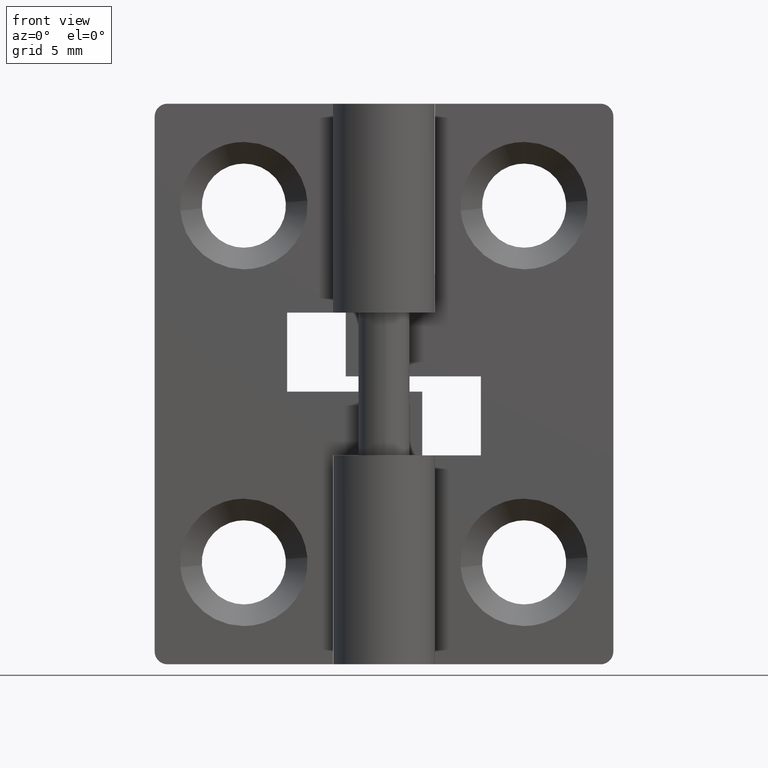
[diagram: clean part render]
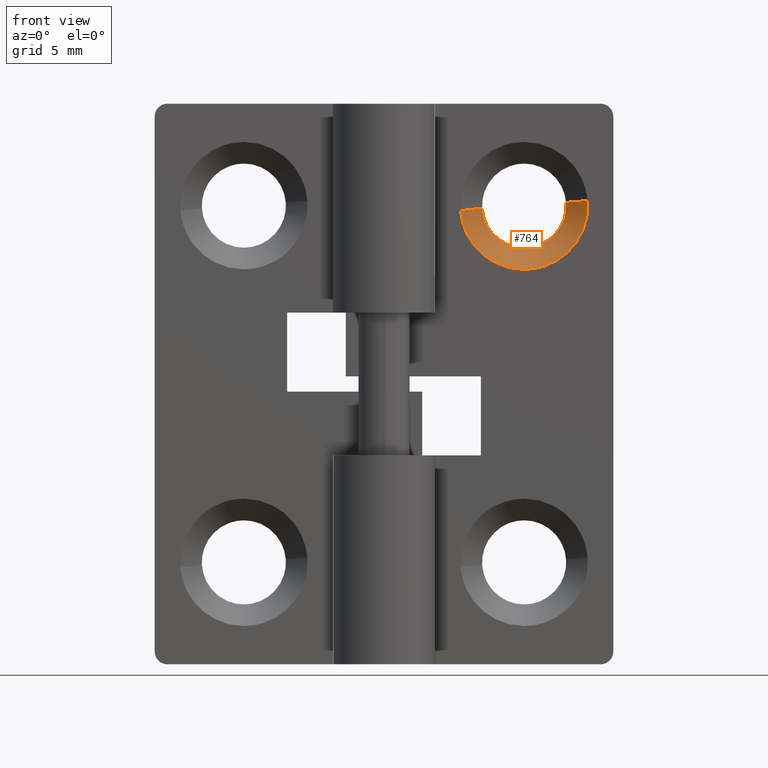
[diagram: same view with one face highlighted and labeled with its STEP entity id]
A machine part, front view. The second image highlights one B-rep face of the part: STEP entity #764.
In plain terms, the highlighted face is a freeform B-spline surface patch.
Its self-contained STEP definition (entity closure, byte-faithful):
#455=CARTESIAN_POINT('',(7.139224169167774,1.850000000000000,17.811733903168349));
#456=VERTEX_POINT('',#455);
#457=CARTESIAN_POINT('',(5.500000000000000,1.850000000000000,16.350000000000001));
#458=VERTEX_POINT('',#457);
#459=CARTESIAN_POINT('',(7.139224169167774,1.850000000000000,17.811733903168353));
#460=CARTESIAN_POINT('',(6.971342959418049,1.850000000000001,16.349999999999998));
#461=CARTESIAN_POINT('',(5.500000000000000,1.850000000000000,16.350000000000001));
#469=(BOUNDED_CURVE()B_SPLINE_CURVE(2,(#459,#460,#461),.UNSPECIFIED.,.F.,.U.)B_SPLINE_CURVE_WITH_KNOTS((3,3),(0.269767755878685,0.500000000000000),.UNSPECIFIED.)CURVE()GEOMETRIC_REPRESENTATION_ITEM()RATIONAL_B_SPLINE_CURVE((0.957343736456570,0.730266147778653,1.0))REPRESENTATION_ITEM(''));
#470=EDGE_CURVE('',#456,#458,#469,.T.);
#509=CARTESIAN_POINT('',(3.853077582606727,1.850000000000000,17.899269909721589));
#510=VERTEX_POINT('',#509);
#516=CARTESIAN_POINT('',(5.500000000000000,1.850000000000000,16.350000000000001));
#517=CARTESIAN_POINT('',(3.947834989648941,1.850000000000000,16.350000000000001));
#518=CARTESIAN_POINT('',(3.853077582606727,1.850000000000000,17.899269909721578));
#526=(BOUNDED_CURVE()B_SPLINE_CURVE(2,(#516,#517,#518),.UNSPECIFIED.,.F.,.U.)B_SPLINE_CURVE_WITH_KNOTS((3,3),(0.500000000000000,0.739332962237160),.UNSPECIFIED.)CURVE()GEOMETRIC_REPRESENTATION_ITEM()RATIONAL_B_SPLINE_CURVE((1.0,0.719603993288799,0.976072041662896))REPRESENTATION_ITEM(''));
#527=EDGE_CURVE('',#458,#510,#526,.T.);
#554=CARTESIAN_POINT('',(7.144913600666376,1.849999999983172,18.129457508080140));
#555=VERTEX_POINT('',#554);
#556=CARTESIAN_POINT('',(7.144913600666376,1.849999999983172,18.129457508080137));
#557=CARTESIAN_POINT('',(7.150000000000001,1.850000000000000,18.064828676691121));
#558=CARTESIAN_POINT('',(7.150000000000000,1.850000000000000,18.0));
#559=CARTESIAN_POINT('',(7.150000000000001,1.850000000000000,17.905558562198120));
#560=CARTESIAN_POINT('',(7.139224169167774,1.850000000000000,17.811733903168353));
#568=(BOUNDED_CURVE()B_SPLINE_CURVE(2,(#556,#557,#558,#559,#560),.UNSPECIFIED.,.F.,.U.)B_SPLINE_CURVE_WITH_KNOTS((3,2,3),(0.236331300606114,0.250000000000000,0.269767755878685),.UNSPECIFIED.)CURVE()GEOMETRIC_REPRESENTATION_ITEM()RATIONAL_B_SPLINE_CURVE((0.969723356116193,0.983986122550125,1.0,0.976840633407894,0.957343736456570))REPRESENTATION_ITEM(''));
#569=EDGE_CURVE('',#555,#456,#568,.T.);
#657=CARTESIAN_POINT('',(7.992293334333542,0.999999999998199,18.196147739333380));
#658=VERTEX_POINT('',#657);
#659=CARTESIAN_POINT('',(7.144913600666376,1.849999999983172,18.129457508080140));
#660=CARTESIAN_POINT('',(7.992293334333542,0.999999999998199,18.196147739333380));
#661=QUASI_UNIFORM_CURVE('',1,(#659,#660),.UNSPECIFIED.,.F.,.U.);
#662=EDGE_CURVE('',#555,#658,#661,.T.);
#679=CARTESIAN_POINT('',(3.007706665666458,0.999999999998199,17.803852260666620));
#680=VERTEX_POINT('',#679);
#696=CARTESIAN_POINT('',(3.853077582606727,1.850000000000000,17.899269909721589));
#697=CARTESIAN_POINT('',(3.007706665666458,0.999999999998199,17.803852260666620));
#698=QUASI_UNIFORM_CURVE('',1,(#696,#697),.UNSPECIFIED.,.F.,.U.);
#699=EDGE_CURVE('',#510,#680,#698,.T.);
#705=CARTESIAN_POINT('',(3.872274542714835,1.871250000000001,17.922988188715543));
#706=CARTESIAN_POINT('',(3.874259691562528,1.871249999999999,17.897764481024947));
#707=CARTESIAN_POINT('',(4.004061144848891,1.871250000000000,16.248480640515432));
#708=CARTESIAN_POINT('',(5.627790252166729,1.871250000000000,16.376270892682161));
#709=CARTESIAN_POINT('',(7.251519359484565,1.871250000000000,16.504061144848897));
#710=CARTESIAN_POINT('',(7.122822589265389,1.871250000000000,18.139308656138169));
#711=CARTESIAN_POINT('',(7.121921382934004,1.871250000000000,18.150759568294252));
#712=CARTESIAN_POINT('',(2.979805041701067,0.978218750000000,17.880763197712550));
#713=CARTESIAN_POINT('',(2.982878632579084,0.978218749999999,17.841709522741191));
#714=CARTESIAN_POINT('',(3.183849236490243,0.978218750000000,15.288135883493366));
#715=CARTESIAN_POINT('',(5.697856676498436,0.978218750000000,15.485992559991811));
#716=CARTESIAN_POINT('',(8.211864116506629,0.978218750000000,15.683849236490246));
#717=CARTESIAN_POINT('',(8.012603884995176,0.978218750000000,18.215690533852296));
#718=CARTESIAN_POINT('',(8.011208554079524,0.978218749999999,18.233419894141246));
#726=(BOUNDED_SURFACE()B_SPLINE_SURFACE(2,1,((#705,#712),(#706,#713),(#707,#714),(#708,#715),(#709,#716),(#710,#717),(#711,#718)),.UNSPECIFIED.,.F.,.F.,.U.)B_SPLINE_SURFACE_WITH_KNOTS((3,1,2,1,3),(2,2),(0.0,0.093606268210475,4.271830248563184,8.450054228915892,8.492094299002343),(0.0,1.0),.UNSPECIFIED.)GEOMETRIC_REPRESENTATION_ITEM()RATIONAL_B_SPLINE_SURFACE(((1.013123586158235,1.013123586158235),(1.006561793079118,1.006561793079118),(0.707106781186548,0.707106781186548),(1.0,1.0),(0.707106781186548,0.707106781186548),(1.002947006073553,1.002947006073553),(1.005894012147106,1.005894012147106)))REPRESENTATION_ITEM('')SURFACE());
#727=ORIENTED_EDGE('',*,*,#569,.T.);
#728=ORIENTED_EDGE('',*,*,#470,.T.);
#729=ORIENTED_EDGE('',*,*,#527,.T.);
#730=ORIENTED_EDGE('',*,*,#699,.T.);
#731=CARTESIAN_POINT('',(5.500000000000000,1.0,15.500000000000000));
#732=VERTEX_POINT('',#731);
#733=CARTESIAN_POINT('',(5.500000000000000,1.0,15.500000000000000));
#734=CARTESIAN_POINT('',(3.189023770879836,1.0,15.499999999999991));
#735=CARTESIAN_POINT('',(3.007706665666458,0.999999999998199,17.803852260666613));
#743=(BOUNDED_CURVE()B_SPLINE_CURVE(2,(#733,#734,#735),.UNSPECIFIED.,.F.,.U.)B_SPLINE_CURVE_WITH_KNOTS((3,3),(0.500000000000000,0.736331300630892),.UNSPECIFIED.)CURVE()GEOMETRIC_REPRESENTATION_ITEM()RATIONAL_B_SPLINE_CURVE((1.0,0.723120658607393,0.969723356167903))REPRESENTATION_ITEM(''));
#744=EDGE_CURVE('',#732,#680,#743,.T.);
#745=ORIENTED_EDGE('',*,*,#744,.F.);
#746=CARTESIAN_POINT('',(7.992293334333542,0.999999999998199,18.196147739333377));
#747=CARTESIAN_POINT('',(8.0,1.0,18.098225267532868));
#748=CARTESIAN_POINT('',(8.0,1.0,18.0));
#749=CARTESIAN_POINT('',(8.0,1.0,15.500000000000004));
#750=CARTESIAN_POINT('',(5.500000000000000,1.0,15.500000000000000));
#758=(BOUNDED_CURVE()B_SPLINE_CURVE(2,(#746,#747,#748,#749,#750),.UNSPECIFIED.,.F.,.U.)B_SPLINE_CURVE_WITH_KNOTS((3,2,3),(0.236331300630892,0.250000000000000,0.500000000000000),.UNSPECIFIED.)CURVE()GEOMETRIC_REPRESENTATION_ITEM()RATIONAL_B_SPLINE_CURVE((0.969723356167903,0.983986122579155,1.0,0.707106781186548,1.0))REPRESENTATION_ITEM(''));
#759=EDGE_CURVE('',#658,#732,#758,.T.);
#760=ORIENTED_EDGE('',*,*,#759,.F.);
#761=ORIENTED_EDGE('',*,*,#662,.F.);
#762=EDGE_LOOP('',(#727,#728,#729,#730,#745,#760,#761));
#763=FACE_OUTER_BOUND('',#762,.T.);
#764=ADVANCED_FACE('',(#763),#726,.F.);